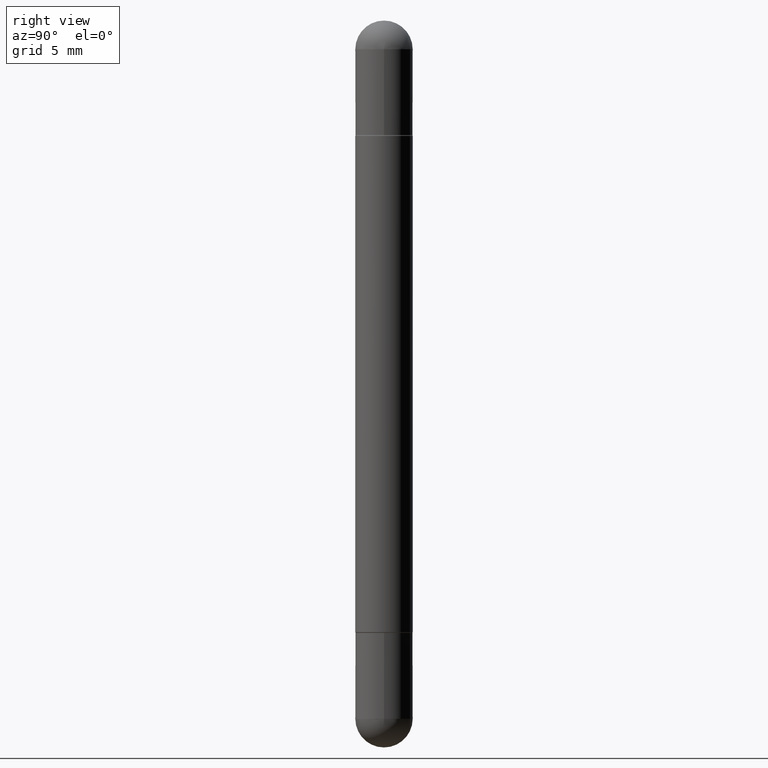
[diagram: clean part render]
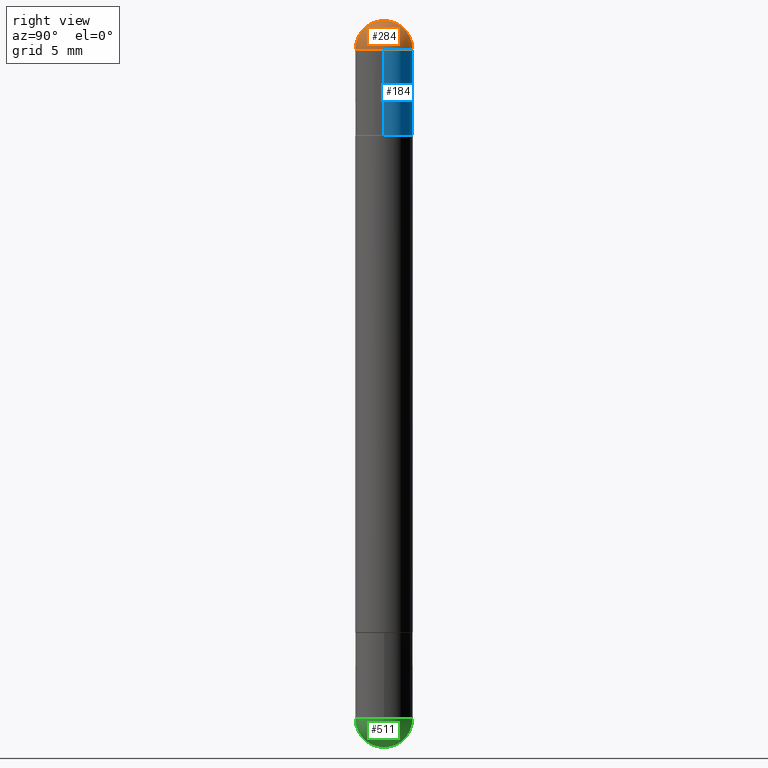
[diagram: same view with three faces highlighted in distinct colors, each labeled with its STEP entity id]
A machine part, right view with three faces highlighted in distinct colors.
Their STEP definitions:

[orange] entity #284 — the highlighted spherical surface has radius 1.4999 mm.
#75 = EDGE_CURVE ( 'NONE', #452, #521, #334, .T. ) ;
#101 = ORIENTED_EDGE ( 'NONE', *, *, #108, .F. ) ;
#108 = EDGE_CURVE ( 'NONE', #206, #521, #794, .T. ) ;
#136 = EDGE_LOOP ( 'NONE', ( #101, #705, #183, #556 ) ) ;
#153 = CARTESIAN_POINT ( 'NONE',  ( 4.123439461174084467E-16, 0.05904999999999487742, -0.05905000000000008159 ) ) ;
#162 = AXIS2_PLACEMENT_3D ( 'NONE', #226, #688, #771 ) ;
#183 = ORIENTED_EDGE ( 'NONE', *, *, #779, .T. ) ;
#206 = VERTEX_POINT ( 'NONE', #663 ) ;
#226 = CARTESIAN_POINT ( 'NONE',  ( 3.514260947928350449E-29, -5.017433257984542594E-15, -0.05905000000000028976 ) ) ;
#284 = ADVANCED_FACE ( 'NONE', ( #502 ), #308, .T. ) ;
#286 = DIRECTION ( 'NONE',  ( -1.000000000000000000, 6.982962677686265922E-15, 4.883557194083112340E-29 ) ) ;
#292 = DIRECTION ( 'NONE',  ( 6.982962677686265922E-15, 1.000000000000000000, 3.469747663417762014E-15 ) ) ;
#305 = DIRECTION ( 'NONE',  ( 1.000000000000000000, -6.982962677686270655E-15, 0.000000000000000000 ) ) ;
#308 = SPHERICAL_SURFACE ( 'NONE', #518, 0.05905000000000025506 ) ;
#310 = CARTESIAN_POINT ( 'NONE',  ( 3.183141170014464762E-29, -5.491615626124592102E-15, -0.05905000000000028976 ) ) ;
#317 = CARTESIAN_POINT ( 'NONE',  ( 0.05905000000000001914, -5.120519244513884944E-15, -0.05905000000000028976 ) ) ;
#334 = CIRCLE ( 'NONE', #162, 0.05905000000000001914 ) ;
#346 = DIRECTION ( 'NONE',  ( 1.000000000000000000, -6.860497997771530774E-15, -4.840798879624142912E-29 ) ) ;
#359 = CARTESIAN_POINT ( 'NONE',  ( -4.051124067683763770E-16, -0.05905000000000539678, -0.05905000000000049099 ) ) ;
#452 = VERTEX_POINT ( 'NONE', #317 ) ;
#499 = CIRCLE ( 'NONE', #617, 0.05905000000000025506 ) ;
#502 = FACE_OUTER_BOUND ( 'NONE', #136, .T. ) ;
#518 = AXIS2_PLACEMENT_3D ( 'NONE', #310, #749, #292 ) ;
#521 = VERTEX_POINT ( 'NONE', #153 ) ;
#535 = CARTESIAN_POINT ( 'NONE',  ( 3.183141170014464762E-29, -5.491615626124592102E-15, -0.05905000000000028976 ) ) ;
#556 = ORIENTED_EDGE ( 'NONE', *, *, #75, .T. ) ;
#613 = EDGE_CURVE ( 'NONE', #206, #780, #499, .T. ) ;
#617 = AXIS2_PLACEMENT_3D ( 'NONE', #768, #346, #785 ) ;
#646 = AXIS2_PLACEMENT_3D ( 'NONE', #535, #286, #733 ) ;
#660 = CIRCLE ( 'NONE', #695, 0.05905000000000001914 ) ;
#663 = CARTESIAN_POINT ( 'NONE',  ( 3.330070981488499955E-29, -5.694171829508798064E-15, -3.414809992080329023E-17 ) ) ;
#679 = CARTESIAN_POINT ( 'NONE',  ( 3.514260947928350449E-29, -5.017433257984542594E-15, -0.05905000000000028976 ) ) ;
#688 = DIRECTION ( 'NONE',  ( 2.445468806185136597E-29, -3.491481338843145583E-15, 1.000000000000000000 ) ) ;
#695 = AXIS2_PLACEMENT_3D ( 'NONE', #679, #736, #305 ) ;
#705 = ORIENTED_EDGE ( 'NONE', *, *, #613, .T. ) ;
#733 = DIRECTION ( 'NONE',  ( -6.982962677686266711E-15, -1.000000000000000000, 0.000000000000000000 ) ) ;
#736 = DIRECTION ( 'NONE',  ( 2.445468806185136597E-29, -3.491481338843145583E-15, 1.000000000000000000 ) ) ;
#749 = DIRECTION ( 'NONE',  ( 1.000000000000000000, -6.982962677686265922E-15, -4.883557194083112340E-29 ) ) ;
#768 = CARTESIAN_POINT ( 'NONE',  ( 3.183141170014464762E-29, -5.491615626124592102E-15, -0.05905000000000028976 ) ) ;
#771 = DIRECTION ( 'NONE',  ( 1.000000000000000000, -6.982962677686270655E-15, 0.000000000000000000 ) ) ;
#779 = EDGE_CURVE ( 'NONE', #780, #452, #660, .T. ) ;
#780 = VERTEX_POINT ( 'NONE', #359 ) ;
#785 = DIRECTION ( 'NONE',  ( 6.860497997771530774E-15, 1.000000000000000000, 0.000000000000000000 ) ) ;
#794 = CIRCLE ( 'NONE', #646, 0.05905000000000025506 ) ;

[blue] entity #184 — the highlighted cylindrical surface (edge-blend (fillet) strip) has radius 1.4999 mm, axis along (-0, 0, -1).
#20 = ORIENTED_EDGE ( 'NONE', *, *, #75, .F. ) ;
#47 = DIRECTION ( 'NONE',  ( -2.445468806185136877E-29, 3.491481338843145188E-15, -1.000000000000000000 ) ) ;
#54 = VECTOR ( 'NONE', #167, 39.37007874015748143 ) ;
#63 = ORIENTED_EDGE ( 'NONE', *, *, #472, .T. ) ;
#75 = EDGE_CURVE ( 'NONE', #452, #521, #334, .T. ) ;
#80 = AXIS2_PLACEMENT_3D ( 'NONE', #237, #361, #102 ) ;
#102 = DIRECTION ( 'NONE',  ( 1.000000000000000000, -6.982962677686270655E-15, 0.000000000000000000 ) ) ;
#122 = CARTESIAN_POINT ( 'NONE',  ( 3.081046148912652946E-29, -4.398917338808479031E-15, -0.2362000000000003264 ) ) ;
#147 = VERTEX_POINT ( 'NONE', #658 ) ;
#153 = CARTESIAN_POINT ( 'NONE',  ( 4.123439461174084467E-16, 0.05904999999999487742, -0.05905000000000008159 ) ) ;
#160 = CARTESIAN_POINT ( 'NONE',  ( 0.05905000000000001914, -4.123439461173741806E-16, -1.496100000000000207 ) ) ;
#162 = AXIS2_PLACEMENT_3D ( 'NONE', #226, #688, #771 ) ;
#167 = DIRECTION ( 'NONE',  ( -2.445468806185136877E-29, 3.491481338843145188E-15, -1.000000000000000000 ) ) ;
#173 = EDGE_LOOP ( 'NONE', ( #321, #344, #20, #657, #63 ) ) ;
#182 = CARTESIAN_POINT ( 'NONE',  ( -0.05905000000000001914, -4.303062891628101254E-15, -0.2362000000000003264 ) ) ;
#184 = ADVANCED_FACE ( 'NONE', ( #343 ), #729, .T. ) ;
#187 = LINE ( 'NONE', #444, #54 ) ;
#226 = CARTESIAN_POINT ( 'NONE',  ( 3.514260947928350449E-29, -5.017433257984542594E-15, -0.05905000000000028976 ) ) ;
#231 = VECTOR ( 'NONE', #47, 39.37007874015748143 ) ;
#237 = CARTESIAN_POINT ( 'NONE',  ( 3.514260947928350449E-29, -5.017433257984542594E-15, -0.05905000000000028976 ) ) ;
#306 = EDGE_CURVE ( 'NONE', #608, #333, #187, .T. ) ;
#315 = EDGE_CURVE ( 'NONE', #521, #608, #448, .T. ) ;
#317 = CARTESIAN_POINT ( 'NONE',  ( 0.05905000000000001914, -5.120519244513884944E-15, -0.05905000000000028976 ) ) ;
#321 = ORIENTED_EDGE ( 'NONE', *, *, #306, .F. ) ;
#324 = CIRCLE ( 'NONE', #616, 0.05905000000000001914 ) ;
#333 = VERTEX_POINT ( 'NONE', #182 ) ;
#334 = CIRCLE ( 'NONE', #162, 0.05905000000000001914 ) ;
#340 = CARTESIAN_POINT ( 'NONE',  ( 0.000000000000000000, 0.000000000000000000, -1.496100000000000207 ) ) ;
#343 = FACE_OUTER_BOUND ( 'NONE', #173, .T. ) ;
#344 = ORIENTED_EDGE ( 'NONE', *, *, #315, .F. ) ;
#352 = DIRECTION ( 'NONE',  ( 1.000000000000000000, -6.982962677686266711E-15, 0.000000000000000000 ) ) ;
#361 = DIRECTION ( 'NONE',  ( 2.445468806185136597E-29, -3.491481338843145583E-15, 1.000000000000000000 ) ) ;
#385 = DIRECTION ( 'NONE',  ( 1.000000000000000000, -6.982962677686270655E-15, 0.000000000000000000 ) ) ;
#399 = DIRECTION ( 'NONE',  ( 2.445468806185136597E-29, -3.491481338843145583E-15, 1.000000000000000000 ) ) ;
#444 = CARTESIAN_POINT ( 'NONE',  ( -0.05905000000000001914, 4.051124067684090655E-16, -1.496100000000000207 ) ) ;
#448 = CIRCLE ( 'NONE', #80, 0.05905000000000001914 ) ;
#452 = VERTEX_POINT ( 'NONE', #317 ) ;
#472 = EDGE_CURVE ( 'NONE', #147, #333, #324, .T. ) ;
#481 = DIRECTION ( 'NONE',  ( -2.445468806185136597E-29, 3.491481338843145583E-15, -1.000000000000000000 ) ) ;
#521 = VERTEX_POINT ( 'NONE', #153 ) ;
#608 = VERTEX_POINT ( 'NONE', #666 ) ;
#616 = AXIS2_PLACEMENT_3D ( 'NONE', #122, #399, #385 ) ;
#657 = ORIENTED_EDGE ( 'NONE', *, *, #763, .T. ) ;
#658 = CARTESIAN_POINT ( 'NONE',  ( 0.05905000000000001914, -4.811261284925853162E-15, -0.2362000000000003264 ) ) ;
#666 = CARTESIAN_POINT ( 'NONE',  ( -0.05905000000000001914, -4.303062891628101254E-15, -0.05905000000000028976 ) ) ;
#688 = DIRECTION ( 'NONE',  ( 2.445468806185136597E-29, -3.491481338843145583E-15, 1.000000000000000000 ) ) ;
#729 = CYLINDRICAL_SURFACE ( 'NONE', #795, 0.05905000000000001914 ) ;
#763 = EDGE_CURVE ( 'NONE', #452, #147, #805, .T. ) ;
#771 = DIRECTION ( 'NONE',  ( 1.000000000000000000, -6.982962677686270655E-15, 0.000000000000000000 ) ) ;
#795 = AXIS2_PLACEMENT_3D ( 'NONE', #340, #481, #352 ) ;
#805 = LINE ( 'NONE', #160, #231 ) ;

[green] entity #511 — the highlighted spherical surface has radius 1.4999 mm.
#3 = ORIENTED_EDGE ( 'NONE', *, *, #436, .T. ) ;
#28 = DIRECTION ( 'NONE',  ( -2.445468806185136597E-29, 3.491481338843145583E-15, 1.000000000000000000 ) ) ;
#57 = AXIS2_PLACEMENT_3D ( 'NONE', #580, #412, #270 ) ;
#62 = CARTESIAN_POINT ( 'NONE',  ( 3.183141170014464762E-29, -5.491615626124592102E-15, -1.437049999999999939 ) ) ;
#94 = CARTESIAN_POINT ( 'NONE',  ( 3.330070981488499955E-29, -5.694171829508798064E-15, -1.496100000000000207 ) ) ;
#97 = CARTESIAN_POINT ( 'NONE',  ( 4.123439461174084467E-16, 0.05904999999999487742, -1.437050000000000161 ) ) ;
#118 = EDGE_CURVE ( 'NONE', #440, #336, #278, .T. ) ;
#157 = CARTESIAN_POINT ( 'NONE',  ( 3.514260947928350449E-29, -5.017433257984542594E-15, -1.437049999999999939 ) ) ;
#236 = VERTEX_POINT ( 'NONE', #94 ) ;
#270 = DIRECTION ( 'NONE',  ( 6.982962677686265922E-15, 1.000000000000000000, -4.626330217890349615E-15 ) ) ;
#275 = DIRECTION ( 'NONE',  ( -7.105427357601001070E-15, -1.000000000000000000, 0.000000000000000000 ) ) ;
#278 = CIRCLE ( 'NONE', #447, 0.05905000000000001914 ) ;
#281 = CIRCLE ( 'NONE', #382, 0.05905000000000025506 ) ;
#329 = SPHERICAL_SURFACE ( 'NONE', #57, 0.05905000000000025506 ) ;
#336 = VERTEX_POINT ( 'NONE', #494 ) ;
#348 = DIRECTION ( 'NONE',  ( 1.000000000000000000, -6.982962677686270655E-15, 0.000000000000000000 ) ) ;
#382 = AXIS2_PLACEMENT_3D ( 'NONE', #62, #504, #393 ) ;
#393 = DIRECTION ( 'NONE',  ( 6.982962677686266711E-15, 1.000000000000000000, 0.000000000000000000 ) ) ;
#409 = CARTESIAN_POINT ( 'NONE',  ( 3.514260947928350449E-29, -5.017433257984542594E-15, -1.437049999999999939 ) ) ;
#412 = DIRECTION ( 'NONE',  ( -1.000000000000000000, 6.982962677686265922E-15, -4.883557194083112340E-29 ) ) ;
#436 = EDGE_CURVE ( 'NONE', #236, #752, #281, .T. ) ;
#440 = VERTEX_POINT ( 'NONE', #446 ) ;
#446 = CARTESIAN_POINT ( 'NONE',  ( -4.195754854663065087E-16, -0.05905000000000539678, -1.437049999999999716 ) ) ;
#447 = AXIS2_PLACEMENT_3D ( 'NONE', #409, #28, #725 ) ;
#464 = DIRECTION ( 'NONE',  ( -1.000000000000000000, 7.105427357601001070E-15, -4.926315508542082329E-29 ) ) ;
#494 = CARTESIAN_POINT ( 'NONE',  ( 0.05905000000000001914, -5.120519244513884944E-15, -1.437049999999999939 ) ) ;
#504 = DIRECTION ( 'NONE',  ( 1.000000000000000000, -6.982962677686265922E-15, 4.883557194083112340E-29 ) ) ;
#509 = ORIENTED_EDGE ( 'NONE', *, *, #642, .F. ) ;
#511 = ADVANCED_FACE ( 'NONE', ( #652 ), #329, .T. ) ;
#515 = EDGE_LOOP ( 'NONE', ( #509, #3, #628, #815 ) ) ;
#531 = CIRCLE ( 'NONE', #632, 0.05905000000000001914 ) ;
#536 = CARTESIAN_POINT ( 'NONE',  ( 3.183141170014464762E-29, -5.491615626124592102E-15, -1.437049999999999939 ) ) ;
#547 = CIRCLE ( 'NONE', #814, 0.05905000000000025506 ) ;
#580 = CARTESIAN_POINT ( 'NONE',  ( 3.183141170014464762E-29, -5.491615626124592102E-15, -1.437049999999999939 ) ) ;
#628 = ORIENTED_EDGE ( 'NONE', *, *, #664, .F. ) ;
#632 = AXIS2_PLACEMENT_3D ( 'NONE', #157, #716, #348 ) ;
#642 = EDGE_CURVE ( 'NONE', #236, #440, #547, .T. ) ;
#652 = FACE_OUTER_BOUND ( 'NONE', #515, .T. ) ;
#664 = EDGE_CURVE ( 'NONE', #336, #752, #531, .T. ) ;
#716 = DIRECTION ( 'NONE',  ( -2.445468806185136597E-29, 3.491481338843145583E-15, 1.000000000000000000 ) ) ;
#725 = DIRECTION ( 'NONE',  ( 1.000000000000000000, -6.982962677686270655E-15, 0.000000000000000000 ) ) ;
#752 = VERTEX_POINT ( 'NONE', #97 ) ;
#814 = AXIS2_PLACEMENT_3D ( 'NONE', #536, #464, #275 ) ;
#815 = ORIENTED_EDGE ( 'NONE', *, *, #118, .F. ) ;